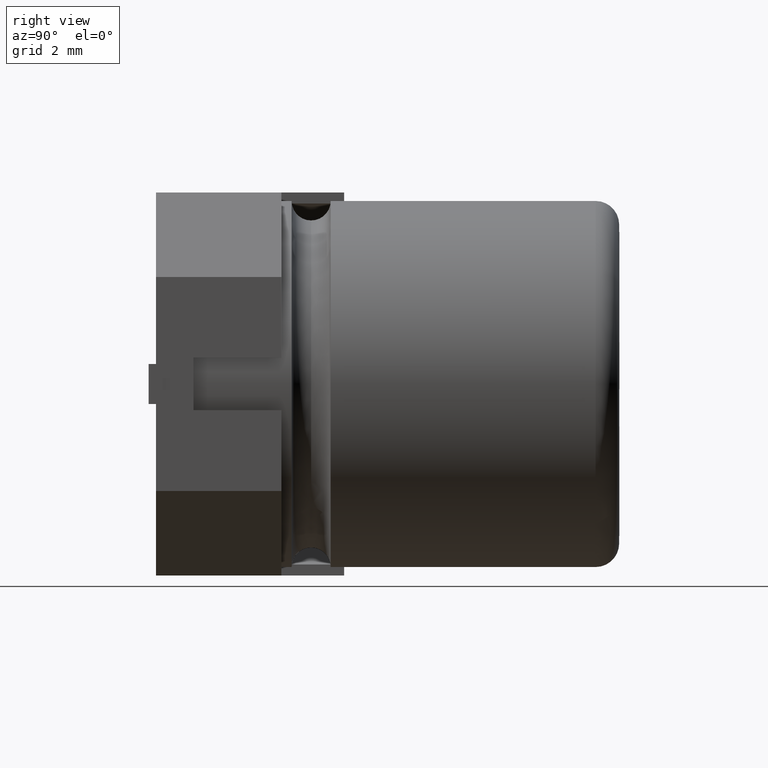
[diagram: clean part render]
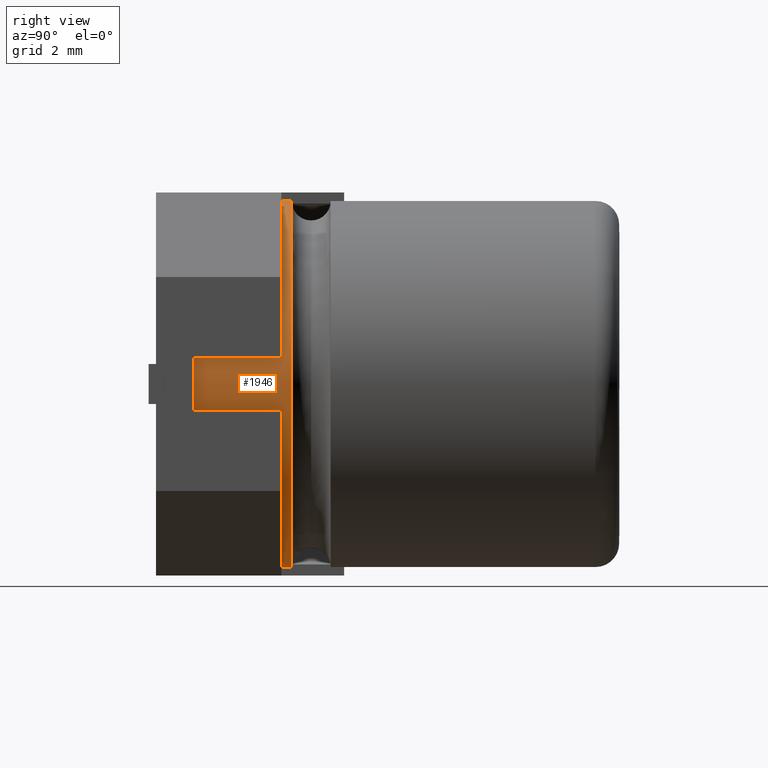
[diagram: same view with one face highlighted and labeled with its STEP entity id]
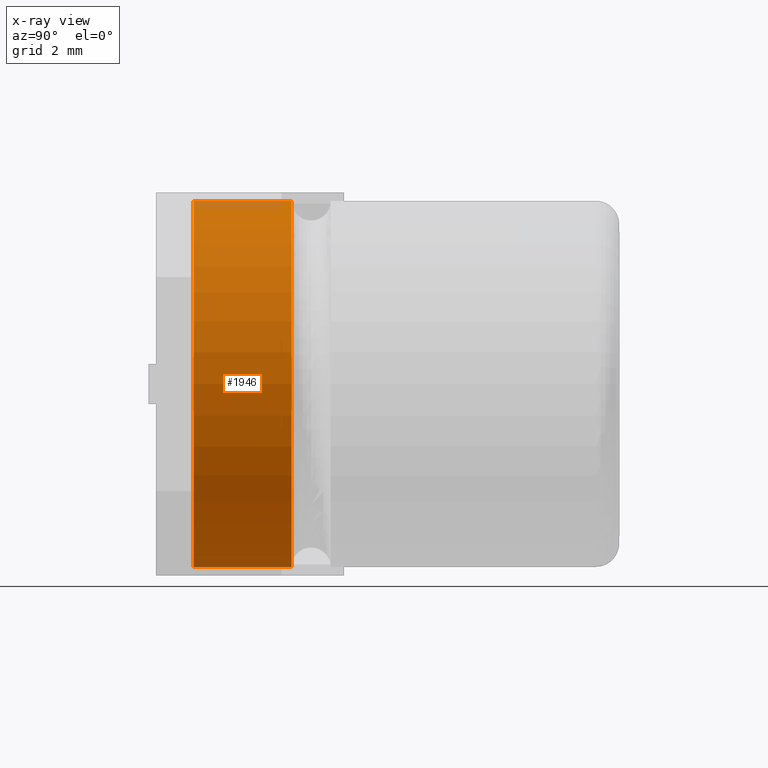
[diagram: x-ray of the same camera — body ghosted, the highlighted face saturated]
A machine part, right view. The second image highlights one B-rep face of the part: STEP entity #1946.
The next image is the same camera in x-ray: the body ghosted, the highlighted face saturated — about 4% of this face is hidden behind the body in this view.
In plain terms, the highlighted cylindrical surface (partial cylindrical patch) has radius 5.0185 mm, axis along (-0, -1, -0).
Its self-contained STEP definition (entity closure, byte-faithful):
#157 = VECTOR ( 'NONE', #2905, 1000.000000000000000 ) ;
#186 = CYLINDRICAL_SURFACE ( 'NONE', #321, 5.018474999999999600 ) ;
#192 = DIRECTION ( 'NONE',  ( -0.0000000000000000000, -1.000000000000000000, -0.0000000000000000000 ) ) ;
#289 = CARTESIAN_POINT ( 'NONE',  ( 5.500000000000000000, 1.032000000000000700, -10.26847499999999900 ) ) ;
#321 = AXIS2_PLACEMENT_3D ( 'NONE', #584, #859, #1092 ) ;
#378 = CARTESIAN_POINT ( 'NONE',  ( 5.500000000000000900, 3.719070000000000300, -0.2315250000000006500 ) ) ;
#463 = CARTESIAN_POINT ( 'NONE',  ( 5.500000000000000000, 3.719070000000000300, -5.250000000000000000 ) ) ;
#527 = VERTEX_POINT ( 'NONE', #378 ) ;
#584 = CARTESIAN_POINT ( 'NONE',  ( 5.500000000000000000, 12.70000000000000300, -5.249999999999999100 ) ) ;
#704 = EDGE_CURVE ( 'NONE', #3420, #1355, #1630, .T. ) ;
#744 = DIRECTION ( 'NONE',  ( 0.0000000000000000000, 0.0000000000000000000, -1.000000000000000000 ) ) ;
#859 = DIRECTION ( 'NONE',  ( -0.0000000000000000000, -1.000000000000000000, -0.0000000000000000000 ) ) ;
#1004 = EDGE_CURVE ( 'NONE', #2838, #1355, #1623, .T. ) ;
#1059 = FACE_OUTER_BOUND ( 'NONE', #2658, .T. ) ;
#1078 = CARTESIAN_POINT ( 'NONE',  ( 5.500000000000000000, 3.719070000000000300, -10.26847499999999900 ) ) ;
#1092 = DIRECTION ( 'NONE',  ( 0.0000000000000000000, 0.0000000000000000000, -1.000000000000000000 ) ) ;
#1247 = CARTESIAN_POINT ( 'NONE',  ( 5.500000000000000000, 12.70000000000000300, -10.26847499999999900 ) ) ;
#1307 = CARTESIAN_POINT ( 'NONE',  ( 5.500000000000000900, 12.70000000000000300, -0.2315249999999989300 ) ) ;
#1323 = LINE ( 'NONE', #1307, #157 ) ;
#1355 = VERTEX_POINT ( 'NONE', #289 ) ;
#1410 = CIRCLE ( 'NONE', #2681, 5.018474999999998700 ) ;
#1422 = CARTESIAN_POINT ( 'NONE',  ( 5.500000000000000000, 1.032000000000000700, -5.249999999999999100 ) ) ;
#1623 = CIRCLE ( 'NONE', #3369, 5.018475000000000500 ) ;
#1630 = LINE ( 'NONE', #1247, #3136 ) ;
#1946 = ADVANCED_FACE ( 'NONE', ( #1059 ), #186, .T. ) ;
#2218 = DIRECTION ( 'NONE',  ( 0.0000000000000000000, 0.0000000000000000000, 1.000000000000000000 ) ) ;
#2444 = DIRECTION ( 'NONE',  ( 0.0000000000000000000, 1.000000000000000000, 0.0000000000000000000 ) ) ;
#2518 = CARTESIAN_POINT ( 'NONE',  ( 5.500000000000000900, 1.032000000000000700, -0.2315249999999989300 ) ) ;
#2530 = ORIENTED_EDGE ( 'NONE', *, *, #1004, .T. ) ;
#2658 = EDGE_LOOP ( 'NONE', ( #3328, #3040, #2530, #3167 ) ) ;
#2681 = AXIS2_PLACEMENT_3D ( 'NONE', #463, #3123, #744 ) ;
#2838 = VERTEX_POINT ( 'NONE', #2518 ) ;
#2905 = DIRECTION ( 'NONE',  ( -0.0000000000000000000, -1.000000000000000000, -0.0000000000000000000 ) ) ;
#2908 = EDGE_CURVE ( 'NONE', #3420, #527, #1410, .T. ) ;
#3040 = ORIENTED_EDGE ( 'NONE', *, *, #3403, .T. ) ;
#3123 = DIRECTION ( 'NONE',  ( -0.0000000000000000000, -1.000000000000000000, -0.0000000000000000000 ) ) ;
#3136 = VECTOR ( 'NONE', #192, 1000.000000000000000 ) ;
#3167 = ORIENTED_EDGE ( 'NONE', *, *, #704, .F. ) ;
#3328 = ORIENTED_EDGE ( 'NONE', *, *, #2908, .T. ) ;
#3369 = AXIS2_PLACEMENT_3D ( 'NONE', #1422, #2444, #2218 ) ;
#3403 = EDGE_CURVE ( 'NONE', #527, #2838, #1323, .T. ) ;
#3420 = VERTEX_POINT ( 'NONE', #1078 ) ;